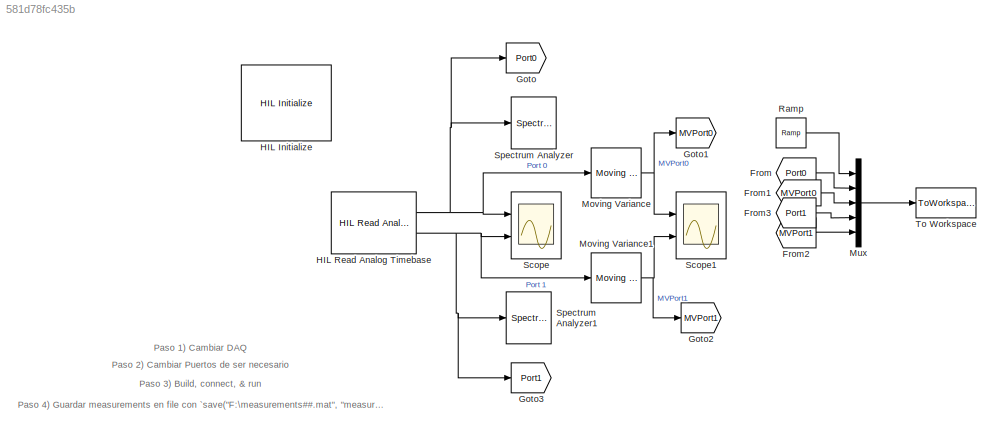
MODEL slx_581d78fc435b
KIND model
CONFIG AbsTol = auto
CONFIG EnableMultiTasking = on
CONFIG FixedStep = 0.01
CONFIG MaxStep = auto
CONFIG MinStep = auto
CONFIG RelTol = 1e-3
CONFIG SampleTimeConstraint = Unconstrained
CONFIG Solver = FixedStepAuto
CONFIG SolverName = FixedStepAuto
CONFIG StartTime = 0.0
CONFIG StopTime = 15
BLOCK [From] From
  GotoTag = Port0
BLOCK [From] From1
  GotoTag = MVPort0
BLOCK [From] From2
  GotoTag = MVPort1
BLOCK [From] From3
  GotoTag = Port1
BLOCK [Goto] Goto
  GotoTag = Port0
BLOCK [Goto] Goto1
  GotoTag = MVPort0
BLOCK [Goto] Goto2
  GotoTag = MVPort1
BLOCK [Goto] Goto3
  GotoTag = Port1
BLOCK [Reference] HIL Initialize  REF=quarc_library/Data Acquisition/Generic/Configuration/HIL Initialize
  AttributesFormatString = %<object_name> (%<board_type>-%<board_number>)
  Ports = []
  SourceBlock = quarc_library/Data Acquisition/Generic/Configuration/HIL Initialize
  SourceProductName = QUARC Targets
  SourceType = HIL Initialize
  UserDataPersistent = on
BLOCK [Reference] HIL Read Analog Timebase  REF=quarc_library/Data Acquisition/Generic/Timebases/HIL Read Analog
Timebase
  AttributesFormatString = (%<object_name>)
  Ports = [0, 2]
  SourceBlock = quarc_library/Data Acquisition/Generic/Timebases/HIL Read Analog\nTimebase
  SourceProductName = QUARC Targets
  SourceType = HIL Read Analog Timebase
  UserDataPersistent = on
BLOCK [Reference] Moving Variance  REF=dspstat3/Moving
Variance
  Ports = [1, 1]
  SourceBlock = dspstat3/Moving\nVariance
  SourceProductBaseCode = DS
  SourceProductName = DSP System Toolbox
  SourceType = dsp.simulink.MovingVariance
BLOCK [Reference] Moving Variance1  REF=dspstat3/Moving
Variance
  Ports = [1, 1]
  SourceBlock = dspstat3/Moving\nVariance
  SourceProductBaseCode = DS
  SourceProductName = DSP System Toolbox
  SourceType = dsp.simulink.MovingVariance
BLOCK [Mux] Mux
  DisplayOption = bar
  Inputs = 5
  Ports = [5, 1]
BLOCK [Reference] Ramp  REF=simulink/Sources/Ramp
  Ports = [0, 1]
  SourceBlock = simulink/Sources/Ramp
  SourceProductBaseCode = SL
  SourceProductName = Simulink
  SourceType = Ramp
BLOCK [Scope] Scope
  Floating = off
  NumInputPorts = 2
  Ports = [2]
  ScopeSpecificationString = Simulink.scopes.TimeScopeBlockCfg('CurrentConfiguration', extmgr.ConfigurationSet(extmgr.Configuration('Core','General UI',true),extmgr.Configuration('Core','Source UI',true),extmgr.Configuration('Sources','WiredSimulink',true),extmgr.Configuration('Visuals','Time Domain',true,'SerializedDisplays',{struct('MinYLimReal','1.86985','MaxYLimReal','1.87557','YLabelReal','','MinYLimMag','1.86985','MaxYL...<+1393ch>
BLOCK [Scope] Scope1
  Floating = off
  NumInputPorts = 2
  Ports = [2]
  ScopeSpecificationString = Simulink.scopes.TimeScopeBlockCfg('CurrentConfiguration', extmgr.ConfigurationSet(extmgr.Configuration('Core','General UI',true),extmgr.Configuration('Core','Source UI',true),extmgr.Configuration('Sources','WiredSimulink',true,'DataLoggingVariableName','ScopeData1'),extmgr.Configuration('Visuals','Time Domain',true,'SerializedDisplays',{struct('MinYLimReal','-0.0117','MaxYLimReal','0.03544','YLabe...<+1450ch>
BLOCK [SpectrumAnalyzer] Spectrum Analyzer
  Ports = [1]
  ScopeSpecificationString = spbscopes.SpectrumAnalyzerBlockCfg('CurrentConfiguration', extmgr.ConfigurationSet(extmgr.Configuration('Core','General UI',true),extmgr.Configuration('Core','Source UI',true),extmgr.Configuration('Sources','WiredSimulink',true),extmgr.Configuration('Visuals','Spectrum',true,'AxesProperties',struct('Color',{[0 0 0],[0 0 0]},'XColor',{[0.686274509803922 0.686274509803922 0.686274509803922],[0.68627...<+1694ch>
BLOCK [SpectrumAnalyzer] Spectrum Analyzer1
  Ports = [1]
  ScopeSpecificationString = spbscopes.SpectrumAnalyzerBlockCfg('CurrentConfiguration', extmgr.ConfigurationSet(extmgr.Configuration('Core','General UI',true),extmgr.Configuration('Core','Source UI',true),extmgr.Configuration('Sources','WiredSimulink',true),extmgr.Configuration('Visuals','Spectrum',true,'AxesProperties',struct('Color',{[0 0 0],[0 0 0]},'XColor',{[0.686274509803922 0.686274509803922 0.686274509803922],[0.68627...<+1693ch>
BLOCK [ToWorkspace] To Workspace
  FixptAsFi = on
  MaxDataPoints = inf
  Ports = [1]
  SampleTime = -1
  VariableName = measurements
ANNOTATION (root): Paso 1) Cambiar DAQ
ANNOTATION (root): Paso 2) Cambiar Puertos de ser necesario
ANNOTATION (root): Paso 3) Build, connect, & run
ANNOTATION (root): Paso 4) Guardar measurements en file con `save("F:\measurements##.mat", "measurements")`
LINE From1:1 -> Mux:3
LINE From2:1 -> Mux:5
LINE From3:1 -> Mux:4
LINE From:1 -> Mux:2
NET HIL Read Analog Timebase:1 -> Goto:1, Moving Variance:1, Scope:1, Spectrum Analyzer:1
NET HIL Read Analog Timebase:2 -> Goto3:1, Moving Variance1:1, Scope:2, Spectrum Analyzer1:1
NET Moving Variance1:1 -> Goto2:1, Scope1:2
NET Moving Variance:1 -> Goto1:1, Scope1:1
LINE Mux:1 -> To Workspace:1
LINE Ramp:1 -> Mux:1
note: NET lines group one-source signal fan-out (src -> all destinations, sorted); 1:1 wires keep LINE
